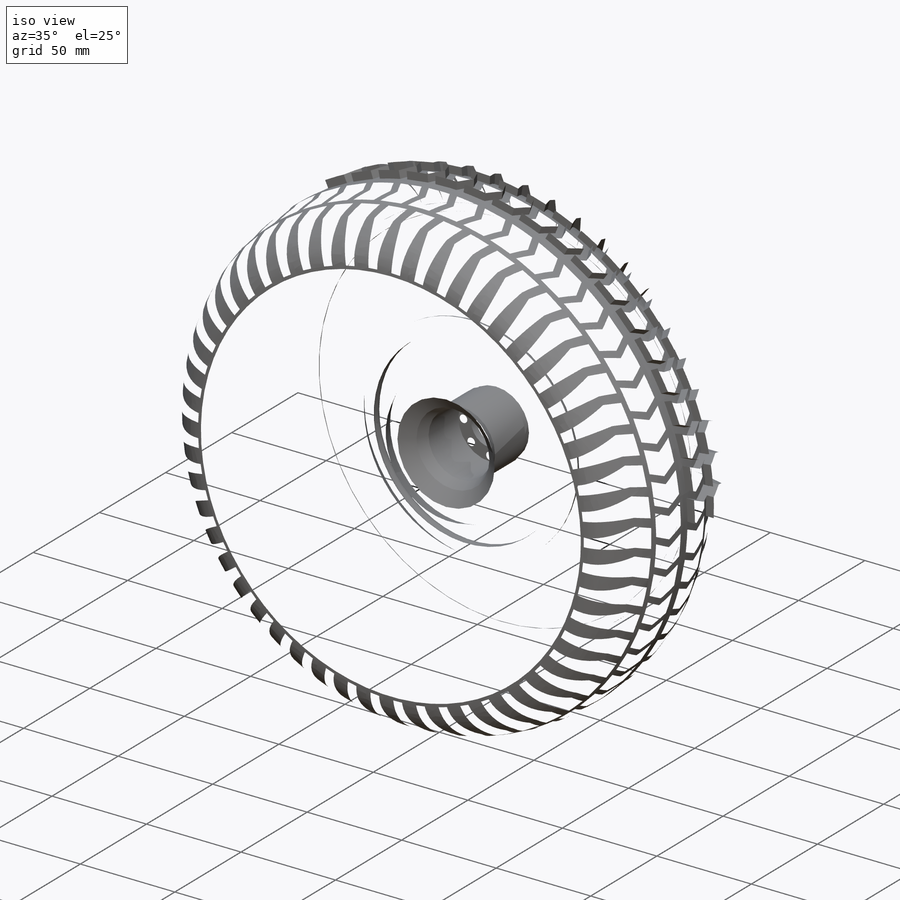
[diagram: iso view]
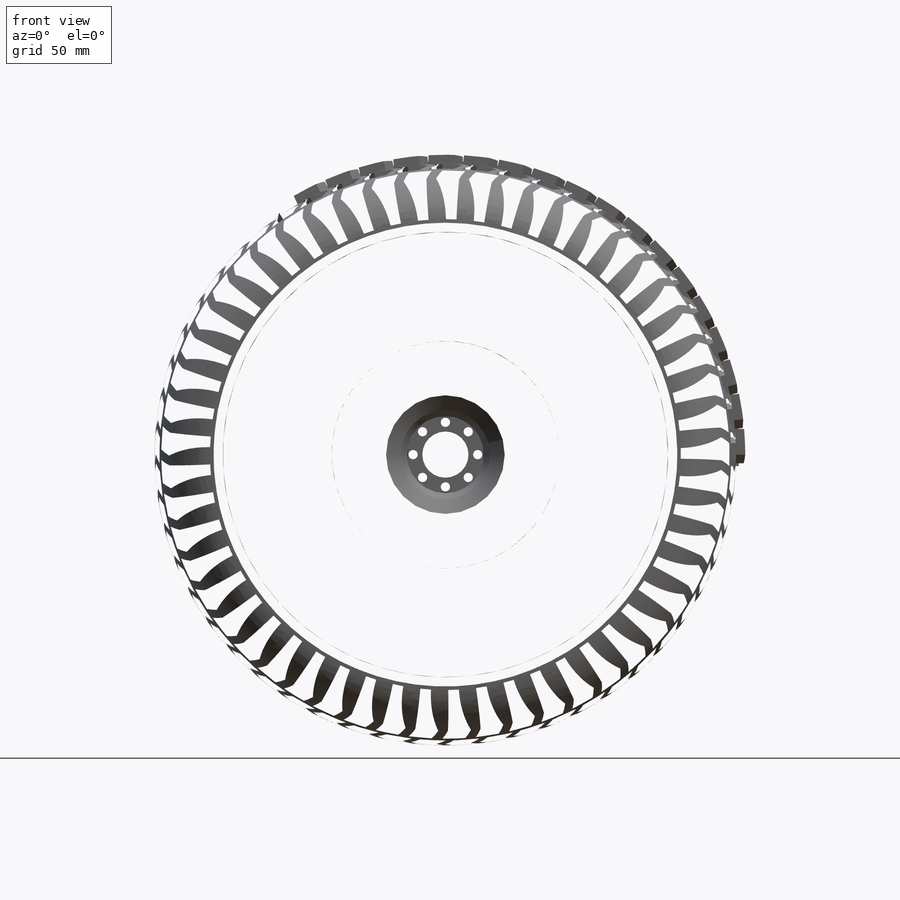
[diagram: front view]
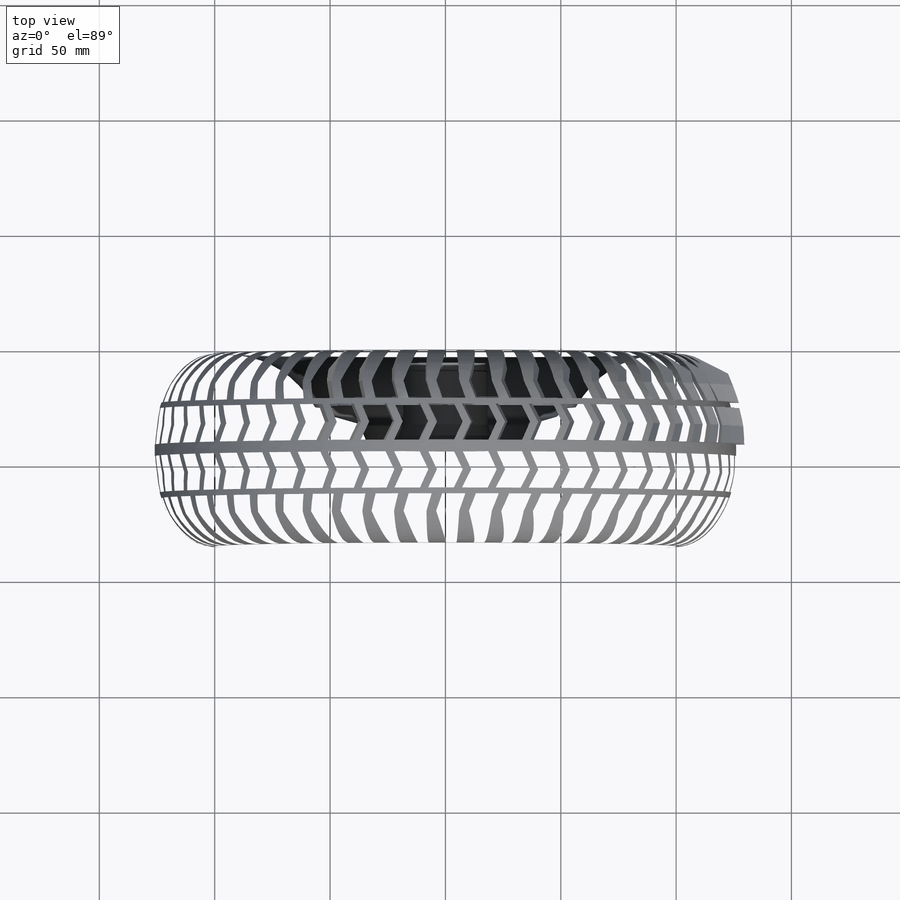
[diagram: top view]
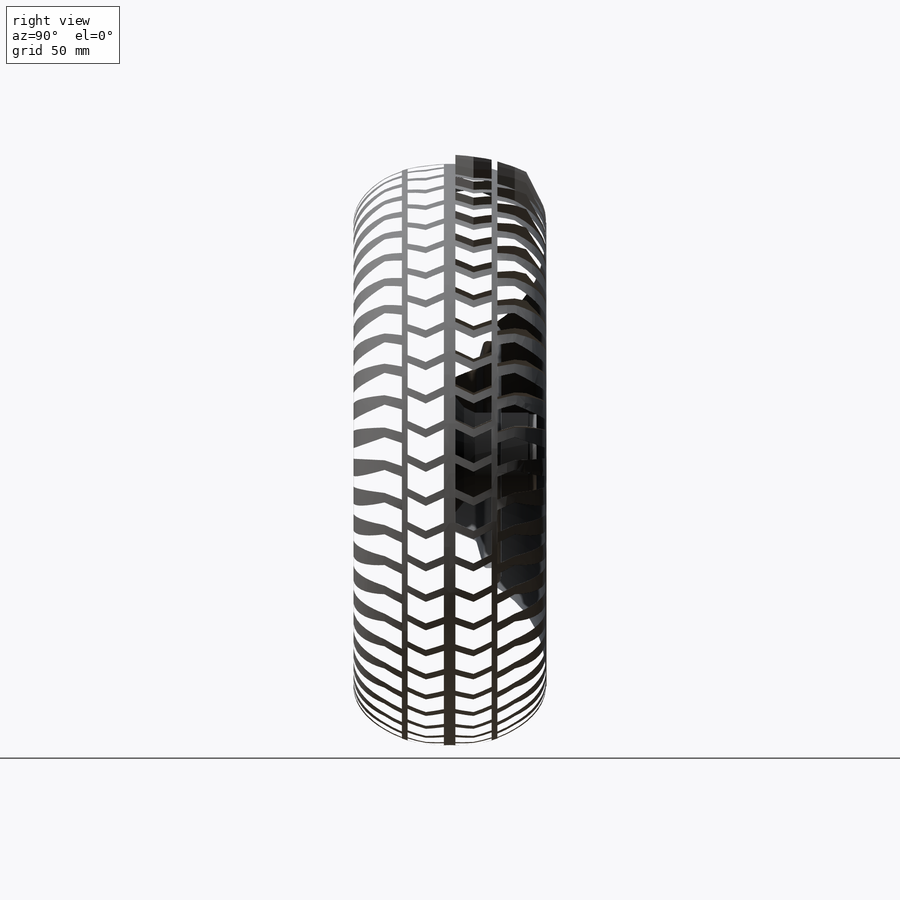
[diagram: right view]
SOLIDWORKS PART (.sldprt)
format: sldprt  version: not decoded by parser v0  size: 3,022,848 bytes
history: native  units: mm
features: sketch x6, plane x4, revolve x2, chamfer x2, material x1, extrude x1, pattern_circular x1, cut_revolve x1, mirror x1, cut_extrude x1 (+9 scaffold rows collapsed)
feature tree (29):
  scaffold x9  (default folders/planes/origin — collapsed)
  material  "材质 <未指定>"
  plane  "前视基准面"
  plane  "上视基准面"
  plane  "右视基准面"
  sketch  "草图1"  dims[c1.D16=2.0mm c1.D2=36.2mm c1.D3=8.2mm c1.D4=7.5mm c1.D5=3.0mm c1.D6=26.7mm c1.D7=31.5mm c1.D8=~32.045315mm c2.D8=90.0deg c3.D8=20.5mm c3.D9=26.25mm c3.D10=7.0mm c3.D11=37.5mm c3.D12=49.25mm c3.D13=10.0mm c3.D14=56.5mm c4.D11=~4.435285mm c4.D13=~3.064715mm c5.D11=~3.064715mm c5.D3=8.2mm c5.D4=7.5mm c6.D11=10.0mm c6.D13=5.69mm c6.D1=0.75mm c6.D15=1.5mm]
  revolve  "旋转1"  Angle=360deg
  chamfer  "倒角1"  Distance=0.7mm Angle=45deg
  chamfer  "倒角2"  Distance=0.7mm Angle=45deg
  sketch  "草图2"  dims[c1.D7=~33.32063mm c1.D1=4.0mm c1.D2=130.0mm c1.D3=40.0mm c1.D4=4.0mm c1.D5=4.0mm c1.D6=18.2mm c2.D7=130.0mm c2.D5=4.0mm c3.D7=0.3mm c3.D8=11.5mm c3.D9=7.5mm c3.D11=3.0mm c3.D10=3.0mm]
  revolve  "旋转3"  Angle=360deg
  sketch  "草图4"  dims[D1=4.6mm D2=1.8mm D3=10.0mm D4=5.0mm D5=7.5mm D6=7.5mm D7=21.0mm D8=2.46mm D9=2.5mm D10=2.5mm D11=3.75mm D12=~11.131231mm]
  plane  "基准面1"  Offset=132mm
  sketch  "草图5"
  extrude  "凸台-拉伸1"  Depth=30mm
  pattern_circular  "阵列(圆周)1"  Count=53 Angle=360deg
  sketch  "草图6"  dims[D7=17.0mm D1=130.0mm D2=7.35mm D3=33.17mm D4=19.7mm D5=2.25mm D6=27.7mm]
  cut_revolve  "切除-旋转1"  Angle=360deg
  mirror  "镜向2"
  sketch  "草图7"  dims[c1.D1=28.0mm c1.D2=~2.523315mm c2.D2=8.0]
  cut_extrude  "切除-拉伸1"  [1 undecoded]
decode coverage: 12 of 15 modeling features carry decoded parameters
note: ~ marks probable driven/reference dimensions
note: 1 parameter value undecoded
note: suppression state not decoded; provenance and decode notes live in map.json
